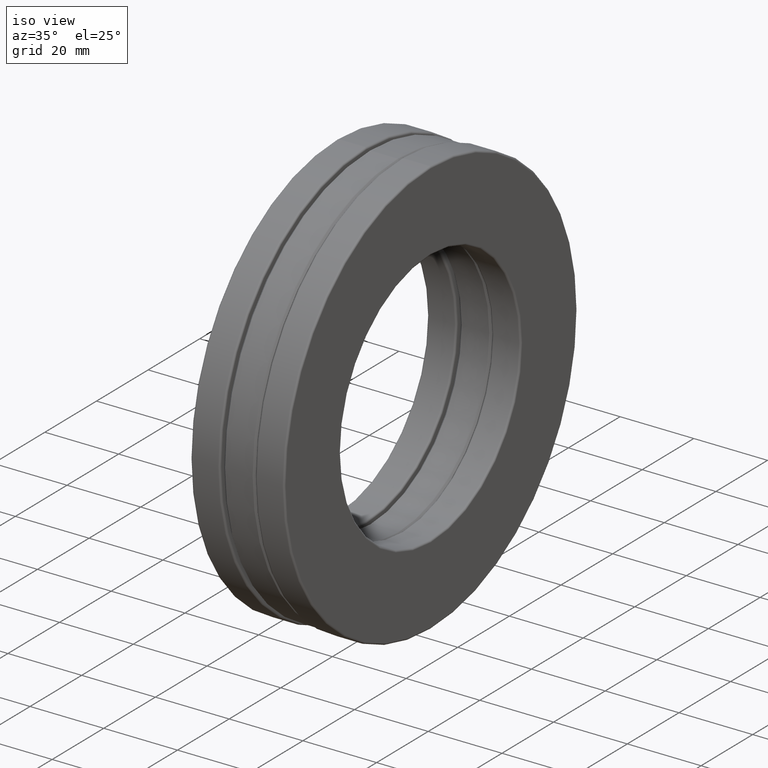
[diagram: clean part render]
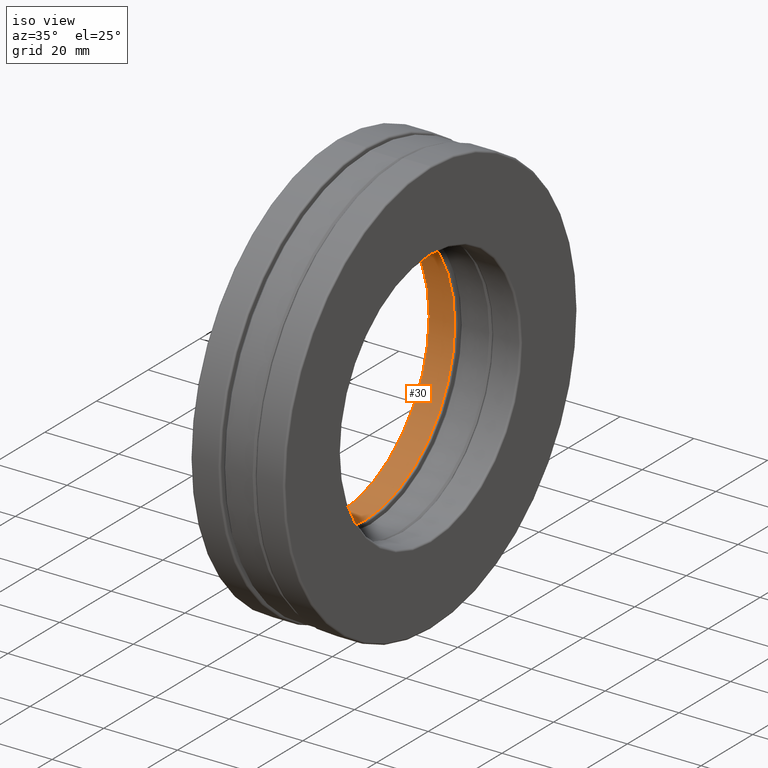
[diagram: same view with one face highlighted and labeled with its STEP entity id]
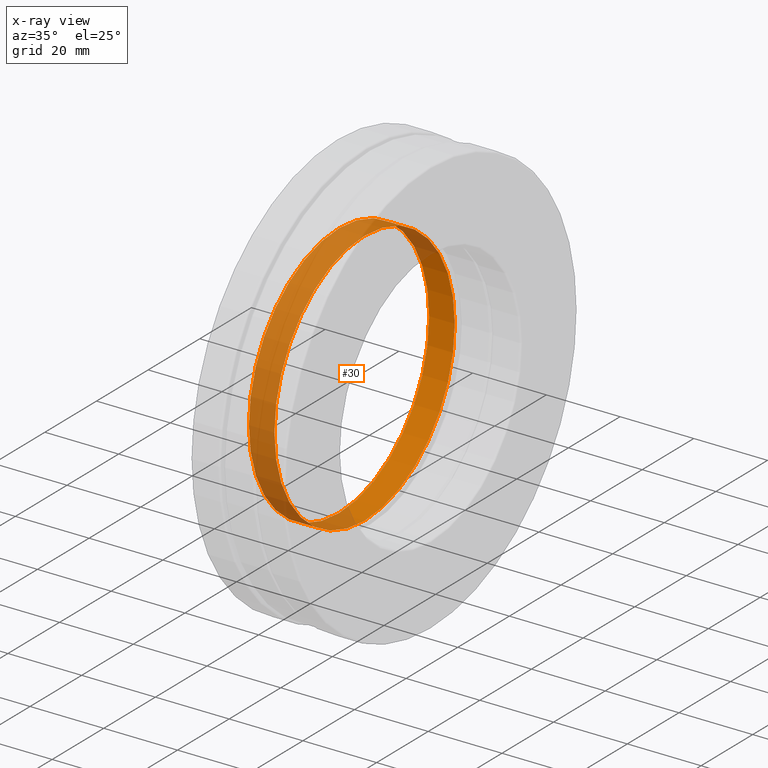
[diagram: x-ray of the same camera — body ghosted, the highlighted face saturated]
A machine part, iso view. The second image highlights one B-rep face of the part: STEP entity #30.
The next image is the same camera in x-ray: the body ghosted, the highlighted face saturated — about 57% of this face is hidden behind the body in this view.
In plain terms, the highlighted cylindrical surface (bore or boss wall) has radius 34.925 mm, axis along (-1, -0, -0).
Its self-contained STEP definition (entity closure, byte-faithful):
#30 = ADVANCED_FACE ( 'NONE', ( #883, #508 ), #254, .F. ) ;
#100 = DIRECTION ( 'NONE',  ( 0.0000000000000000000, 0.0000000000000000000, 1.000000000000000000 ) ) ;
#137 = EDGE_LOOP ( 'NONE', ( #1033 ) ) ;
#210 = CIRCLE ( 'NONE', #1152, 1.375000000000000000 ) ;
#254 = CYLINDRICAL_SURFACE ( 'NONE', #1162, 1.375000000000000000 ) ;
#326 = DIRECTION ( 'NONE',  ( -1.000000000000000000, -0.0000000000000000000, -0.0000000000000000000 ) ) ;
#375 = CIRCLE ( 'NONE', #1122, 1.375000000000000000 ) ;
#423 = EDGE_CURVE ( 'NONE', #1062, #1062, #375, .T. ) ;
#508 = FACE_OUTER_BOUND ( 'NONE', #702, .T. ) ;
#648 = DIRECTION ( 'NONE',  ( -1.000000000000000000, -0.0000000000000000000, -0.0000000000000000000 ) ) ;
#657 = DIRECTION ( 'NONE',  ( -1.000000000000000000, -0.0000000000000000000, -0.0000000000000000000 ) ) ;
#702 = EDGE_LOOP ( 'NONE', ( #938 ) ) ;
#876 = CARTESIAN_POINT ( 'NONE',  ( 0.0000000000000000000, 0.0000000000000000000, 0.0000000000000000000 ) ) ;
#883 = FACE_OUTER_BOUND ( 'NONE', #137, .T. ) ;
#938 = ORIENTED_EDGE ( 'NONE', *, *, #423, .F. ) ;
#970 = DIRECTION ( 'NONE',  ( 0.0000000000000000000, 0.0000000000000000000, 1.000000000000000000 ) ) ;
#985 = CARTESIAN_POINT ( 'NONE',  ( -0.4800000000000000900, 0.0000000000000000000, 0.0000000000000000000 ) ) ;
#1033 = ORIENTED_EDGE ( 'NONE', *, *, #1231, .T. ) ;
#1062 = VERTEX_POINT ( 'NONE', #1381 ) ;
#1112 = VERTEX_POINT ( 'NONE', #1472 ) ;
#1122 = AXIS2_PLACEMENT_3D ( 'NONE', #1206, #657, #100 ) ;
#1152 = AXIS2_PLACEMENT_3D ( 'NONE', #985, #326, #970 ) ;
#1162 = AXIS2_PLACEMENT_3D ( 'NONE', #876, #648, #1446 ) ;
#1206 = CARTESIAN_POINT ( 'NONE',  ( -0.2074999999999999300, 0.0000000000000000000, 0.0000000000000000000 ) ) ;
#1231 = EDGE_CURVE ( 'NONE', #1112, #1112, #210, .T. ) ;
#1381 = CARTESIAN_POINT ( 'NONE',  ( -0.2074999999999999300, 0.0000000000000000000, 1.375000000000000000 ) ) ;
#1446 = DIRECTION ( 'NONE',  ( 0.0000000000000000000, 0.0000000000000000000, 1.000000000000000000 ) ) ;
#1472 = CARTESIAN_POINT ( 'NONE',  ( -0.4800000000000000900, 0.0000000000000000000, 1.375000000000000000 ) ) ;